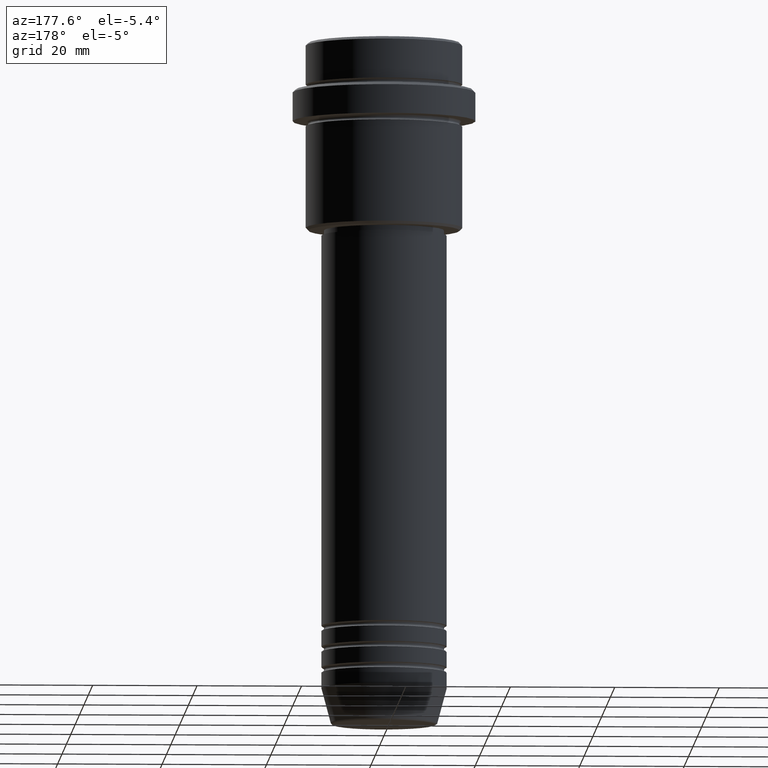
[diagram: clean part render]
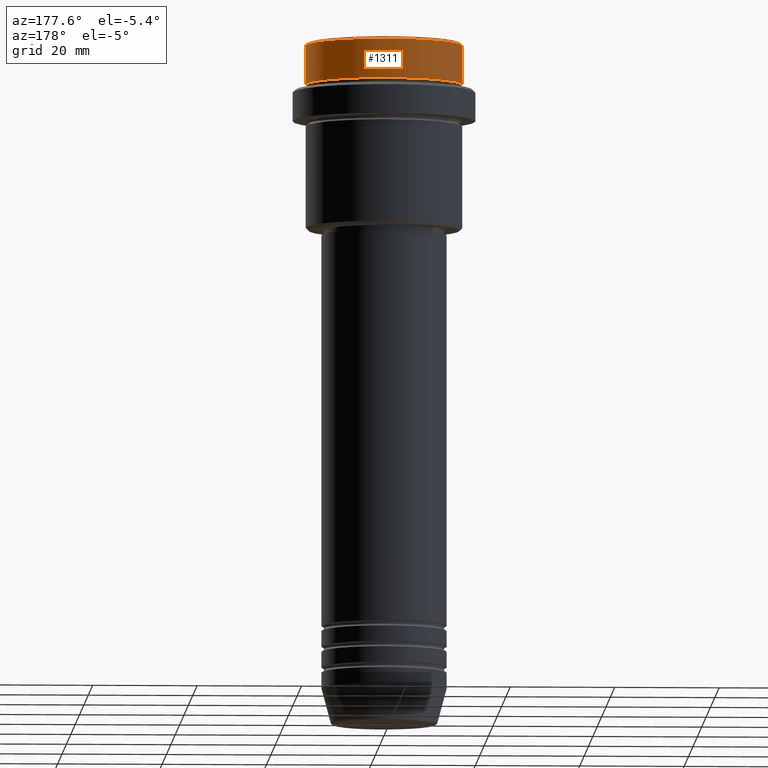
[diagram: same view with one face highlighted and labeled with its STEP entity id]
A machine part, auxiliary view. The second image highlights one B-rep face of the part: STEP entity #1311.
In plain terms, the highlighted cylindrical surface (partial cylindrical patch) has radius 15 mm, axis along (-0, -0, 1).
Its self-contained STEP definition (entity closure, byte-faithful):
#27 = ORIENTED_EDGE ( 'NONE', *, *, #869, .T. ) ;
#36 = VERTEX_POINT ( 'NONE', #592 ) ;
#60 = CARTESIAN_POINT ( 'NONE',  ( -15.00000000000000000, 1.836970198721029589E-15, -7.999999999999998224 ) ) ;
#90 = VERTEX_POINT ( 'NONE', #60 ) ;
#102 = CARTESIAN_POINT ( 'NONE',  ( -15.00000000000000000, 1.836970198721029589E-15, 0.000000000000000000 ) ) ;
#140 = DIRECTION ( 'NONE',  ( 1.000000000000000000, 0.000000000000000000, 0.000000000000000000 ) ) ;
#154 = AXIS2_PLACEMENT_3D ( 'NONE', #248, #679, #140 ) ;
#168 = ORIENTED_EDGE ( 'NONE', *, *, #887, .F. ) ;
#248 = CARTESIAN_POINT ( 'NONE',  ( 0.000000000000000000, 0.000000000000000000, -0.4999999999999970024 ) ) ;
#306 = LINE ( 'NONE', #739, #1038 ) ;
#337 = CARTESIAN_POINT ( 'NONE',  ( 15.00000000000000000, 0.000000000000000000, -0.4999999999999970024 ) ) ;
#372 = DIRECTION ( 'NONE',  ( -0.000000000000000000, -0.000000000000000000, 1.000000000000000000 ) ) ;
#411 = DIRECTION ( 'NONE',  ( 1.000000000000000000, 0.000000000000000000, 0.000000000000000000 ) ) ;
#418 = CARTESIAN_POINT ( 'NONE',  ( 0.000000000000000000, 0.000000000000000000, 0.000000000000000000 ) ) ;
#592 = CARTESIAN_POINT ( 'NONE',  ( -15.00000000000000000, 1.836970198721029589E-15, -0.4999999999999970024 ) ) ;
#626 = FACE_OUTER_BOUND ( 'NONE', #1089, .T. ) ;
#661 = ORIENTED_EDGE ( 'NONE', *, *, #1272, .T. ) ;
#673 = AXIS2_PLACEMENT_3D ( 'NONE', #1285, #1161, #411 ) ;
#679 = DIRECTION ( 'NONE',  ( 0.000000000000000000, 0.000000000000000000, -1.000000000000000000 ) ) ;
#739 = CARTESIAN_POINT ( 'NONE',  ( 15.00000000000000000, 0.000000000000000000, 0.000000000000000000 ) ) ;
#840 = CIRCLE ( 'NONE', #154, 15.00000000000000000 ) ;
#849 = DIRECTION ( 'NONE',  ( 1.000000000000000000, 0.000000000000000000, 0.000000000000000000 ) ) ;
#859 = AXIS2_PLACEMENT_3D ( 'NONE', #418, #372, #849 ) ;
#869 = EDGE_CURVE ( 'NONE', #1010, #90, #1292, .T. ) ;
#887 = EDGE_CURVE ( 'NONE', #1010, #1414, #306, .T. ) ;
#890 = ORIENTED_EDGE ( 'NONE', *, *, #1020, .T. ) ;
#981 = DIRECTION ( 'NONE',  ( -0.000000000000000000, -0.000000000000000000, 1.000000000000000000 ) ) ;
#1010 = VERTEX_POINT ( 'NONE', #1214 ) ;
#1020 = EDGE_CURVE ( 'NONE', #90, #36, #1319, .T. ) ;
#1033 = CYLINDRICAL_SURFACE ( 'NONE', #859, 15.00000000000000000 ) ;
#1038 = VECTOR ( 'NONE', #1401, 1000.000000000000000 ) ;
#1089 = EDGE_LOOP ( 'NONE', ( #27, #890, #661, #168 ) ) ;
#1161 = DIRECTION ( 'NONE',  ( -0.000000000000000000, -0.000000000000000000, 1.000000000000000000 ) ) ;
#1214 = CARTESIAN_POINT ( 'NONE',  ( 15.00000000000000000, 0.000000000000000000, -7.999999999999998224 ) ) ;
#1272 = EDGE_CURVE ( 'NONE', #36, #1414, #840, .T. ) ;
#1285 = CARTESIAN_POINT ( 'NONE',  ( 0.000000000000000000, 0.000000000000000000, -7.999999999999998224 ) ) ;
#1292 = CIRCLE ( 'NONE', #673, 15.00000000000000000 ) ;
#1311 = ADVANCED_FACE ( 'NONE', ( #626 ), #1033, .T. ) ;
#1319 = LINE ( 'NONE', #102, #1390 ) ;
#1390 = VECTOR ( 'NONE', #981, 1000.000000000000000 ) ;
#1401 = DIRECTION ( 'NONE',  ( -0.000000000000000000, -0.000000000000000000, 1.000000000000000000 ) ) ;
#1414 = VERTEX_POINT ( 'NONE', #337 ) ;